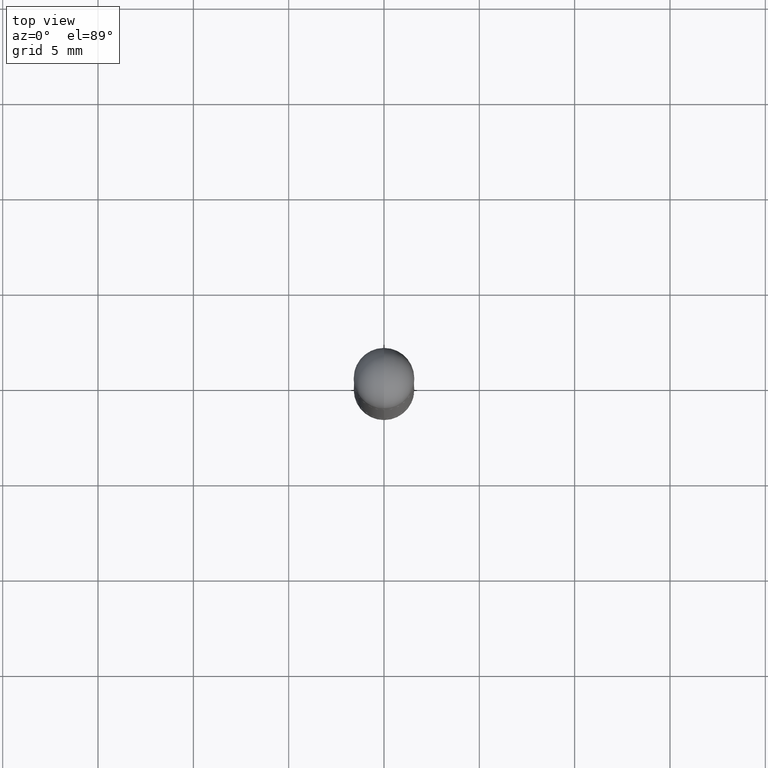
[diagram: clean part render]
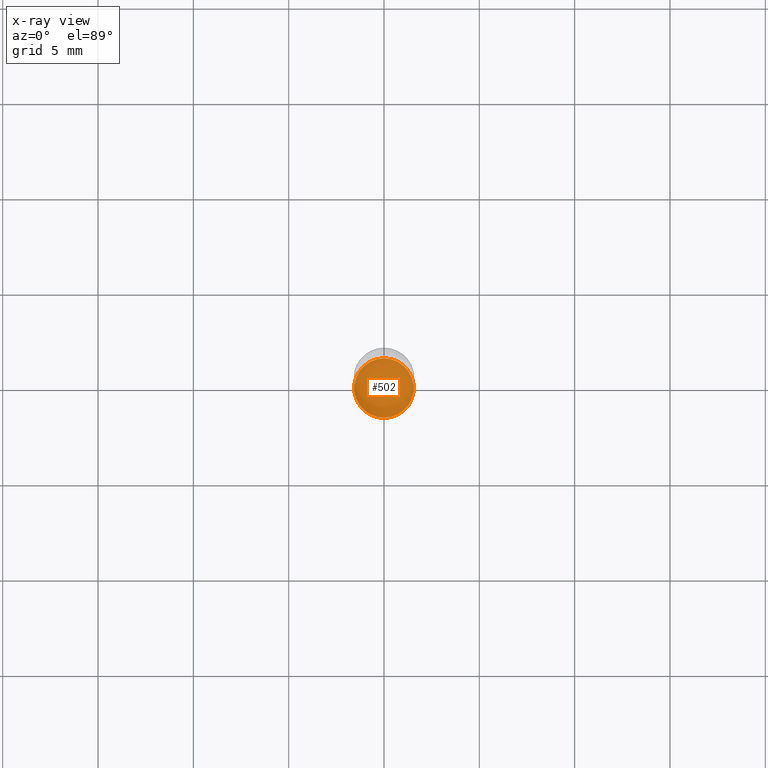
[diagram: x-ray — body ghosted, one internal face saturated and labeled with its STEP entity id]
A machine part, top view, then the same camera in x-ray: the body is ghosted and one INTERNAL B-rep face — a face not visible from any outside direction — is saturated and labeled: STEP entity #502.
In plain terms, the highlighted planar face has unit normal (-0, 0, 1).
Its self-contained STEP definition (entity closure, byte-faithful):
#40 = ORIENTED_EDGE ( 'NONE', *, *, #215, .F. ) ;
#69 = DIRECTION ( 'NONE',  ( -6.982962677686265922E-15, -1.000000000000000000, 3.478477700118036560E-15 ) ) ;
#113 = CARTESIAN_POINT ( 'NONE',  ( 3.068186498217864923E-29, -4.348097125147546489E-15, -1.250000000000000000 ) ) ;
#148 = CARTESIAN_POINT ( 'NONE',  ( 3.068186498217864923E-29, -4.348097125147546489E-15, -1.250000000000000000 ) ) ;
#164 = ORIENTED_EDGE ( 'NONE', *, *, #700, .F. ) ;
#189 = DIRECTION ( 'NONE',  ( -2.454549198574291714E-29, 3.478477700118036955E-15, 1.000000000000000000 ) ) ;
#202 = CARTESIAN_POINT ( 'NONE',  ( 4.405364961712932721E-16, 0.06149999999999564843, -1.250000000000000222 ) ) ;
#215 = EDGE_CURVE ( 'NONE', #695, #661, #299, .T. ) ;
#223 = AXIS2_PLACEMENT_3D ( 'NONE', #148, #396, #654 ) ;
#234 = CIRCLE ( 'NONE', #223, 0.06149999999999999911 ) ;
#259 = DIRECTION ( 'NONE',  ( -6.982962677686265922E-15, -1.000000000000000000, 4.442029257990672131E-15 ) ) ;
#286 = AXIS2_PLACEMENT_3D ( 'NONE', #387, #189, #259 ) ;
#299 = CIRCLE ( 'NONE', #286, 0.06149999999999999911 ) ;
#365 = DIRECTION ( 'NONE',  ( -2.454549198574291434E-29, 3.478477700118036560E-15, 1.000000000000000000 ) ) ;
#387 = CARTESIAN_POINT ( 'NONE',  ( 3.068186498217864923E-29, -4.348097125147546489E-15, -1.250000000000000000 ) ) ;
#389 = EDGE_LOOP ( 'NONE', ( #40, #164 ) ) ;
#396 = DIRECTION ( 'NONE',  ( -2.454549198574291714E-29, 3.478477700118036955E-15, 1.000000000000000000 ) ) ;
#482 = FACE_OUTER_BOUND ( 'NONE', #389, .T. ) ;
#496 = PLANE ( 'NONE',  #557 ) ;
#502 = ADVANCED_FACE ( 'NONE', ( #482 ), #496, .F. ) ;
#557 = AXIS2_PLACEMENT_3D ( 'NONE', #113, #365, #69 ) ;
#654 = DIRECTION ( 'NONE',  ( -6.982962677686265922E-15, -1.000000000000000000, 4.442029257990672131E-15 ) ) ;
#661 = VERTEX_POINT ( 'NONE', #202 ) ;
#695 = VERTEX_POINT ( 'NONE', #774 ) ;
#700 = EDGE_CURVE ( 'NONE', #661, #695, #234, .T. ) ;
#774 = CARTESIAN_POINT ( 'NONE',  ( -4.294522046776746430E-16, -0.06150000000000434286, -1.249999999999999778 ) ) ;